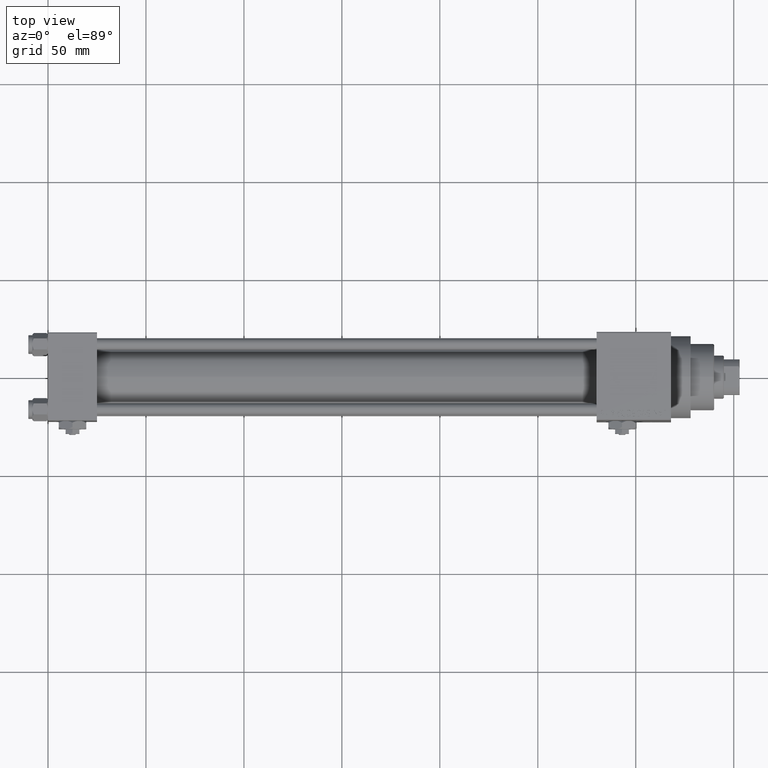
[diagram: clean part render]
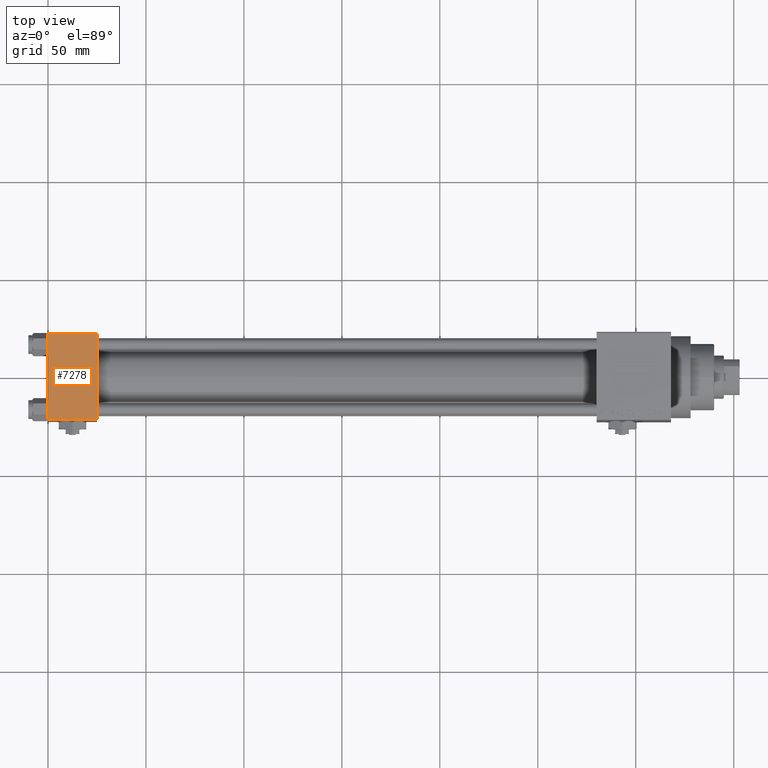
[diagram: same view with one face highlighted and labeled with its STEP entity id]
A machine part, top view. The second image highlights one B-rep face of the part: STEP entity #7278.
In plain terms, the highlighted planar face has unit normal (0, 0, -1).
Its self-contained STEP definition (entity closure, byte-faithful):
#715 = VECTOR ( 'NONE', #1848, 1000.000000000000000 ) ;
#1848 = DIRECTION ( 'NONE',  ( -1.000000000000000000, 0.000000000000000000, 0.000000000000000000 ) ) ;
#7278 = ADVANCED_FACE ( 'NONE', ( #17177 ), #33291, .F. ) ;
#7418 = VERTEX_POINT ( 'NONE', #39447 ) ;
#7709 = CARTESIAN_POINT ( 'NONE',  ( 0.000000000000000000, 21.99999999999999289, 22.50000000000000355 ) ) ;
#8477 = EDGE_CURVE ( 'NONE', #13228, #23177, #10473, .T. ) ;
#9284 = LINE ( 'NONE', #35841, #715 ) ;
#9439 = ORIENTED_EDGE ( 'NONE', *, *, #26691, .F. ) ;
#10185 = VECTOR ( 'NONE', #44470, 1000.000000000000000 ) ;
#10473 = LINE ( 'NONE', #22369, #10185 ) ;
#12315 = CARTESIAN_POINT ( 'NONE',  ( 25.00000000000000000, 22.50000000000000000, 22.50000000000000355 ) ) ;
#13228 = VERTEX_POINT ( 'NONE', #7709 ) ;
#15321 = LINE ( 'NONE', #12315, #15559 ) ;
#15559 = VECTOR ( 'NONE', #46318, 1000.000000000000000 ) ;
#16596 = DIRECTION ( 'NONE',  ( 1.000000000000000000, 0.000000000000000000, 0.000000000000000000 ) ) ;
#17177 = FACE_OUTER_BOUND ( 'NONE', #46915, .T. ) ;
#19286 = ORIENTED_EDGE ( 'NONE', *, *, #45821, .T. ) ;
#20016 = EDGE_CURVE ( 'NONE', #23177, #41619, #46873, .T. ) ;
#22369 = CARTESIAN_POINT ( 'NONE',  ( 0.000000000000000000, 22.50000000000000000, 22.50000000000000355 ) ) ;
#23177 = VERTEX_POINT ( 'NONE', #37803 ) ;
#23688 = ORIENTED_EDGE ( 'NONE', *, *, #8477, .T. ) ;
#26691 = EDGE_CURVE ( 'NONE', #7418, #41619, #15321, .T. ) ;
#29579 = VECTOR ( 'NONE', #16596, 1000.000000000000000 ) ;
#31092 = ORIENTED_EDGE ( 'NONE', *, *, #20016, .T. ) ;
#32305 = DIRECTION ( 'NONE',  ( 0.000000000000000000, 1.000000000000000000, 7.709882115452476934E-17 ) ) ;
#33291 = PLANE ( 'NONE',  #35503 ) ;
#35503 = AXIS2_PLACEMENT_3D ( 'NONE', #36772, #48446, #32305 ) ;
#35841 = CARTESIAN_POINT ( 'NONE',  ( 0.000000000000000000, 21.99999999999999289, 22.50000000000000355 ) ) ;
#36772 = CARTESIAN_POINT ( 'NONE',  ( 25.00000000000000000, 22.50000000000000000, 22.50000000000000355 ) ) ;
#37803 = CARTESIAN_POINT ( 'NONE',  ( 0.000000000000000000, -21.99999999999997868, 22.50000000000000000 ) ) ;
#39447 = CARTESIAN_POINT ( 'NONE',  ( 25.00000000000000000, 21.99999999999999289, 22.50000000000000355 ) ) ;
#41619 = VERTEX_POINT ( 'NONE', #45599 ) ;
#44470 = DIRECTION ( 'NONE',  ( 0.000000000000000000, -1.000000000000000000, -7.709882115452476934E-17 ) ) ;
#45599 = CARTESIAN_POINT ( 'NONE',  ( 25.00000000000000000, -21.99999999999997868, 22.50000000000000000 ) ) ;
#45821 = EDGE_CURVE ( 'NONE', #7418, #13228, #9284, .T. ) ;
#46318 = DIRECTION ( 'NONE',  ( 0.000000000000000000, -1.000000000000000000, -7.709882115452476934E-17 ) ) ;
#46873 = LINE ( 'NONE', #47616, #29579 ) ;
#46915 = EDGE_LOOP ( 'NONE', ( #23688, #31092, #9439, #19286 ) ) ;
#47616 = CARTESIAN_POINT ( 'NONE',  ( 25.00000000000000000, -21.99999999999999289, 22.50000000000000000 ) ) ;
#48446 = DIRECTION ( 'NONE',  ( 0.000000000000000000, 7.709882115452476934E-17, -1.000000000000000000 ) ) ;